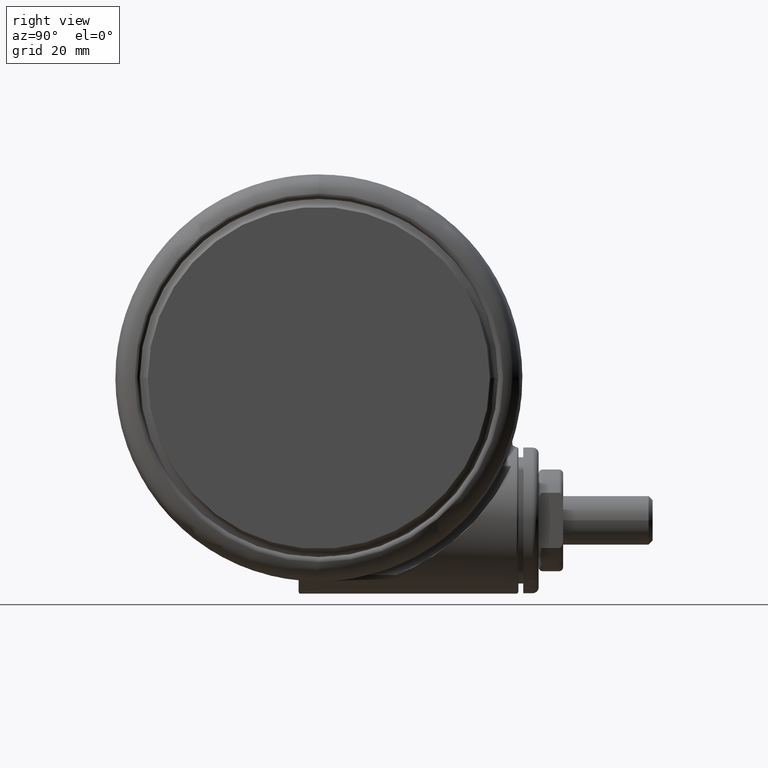
[diagram: clean part render]
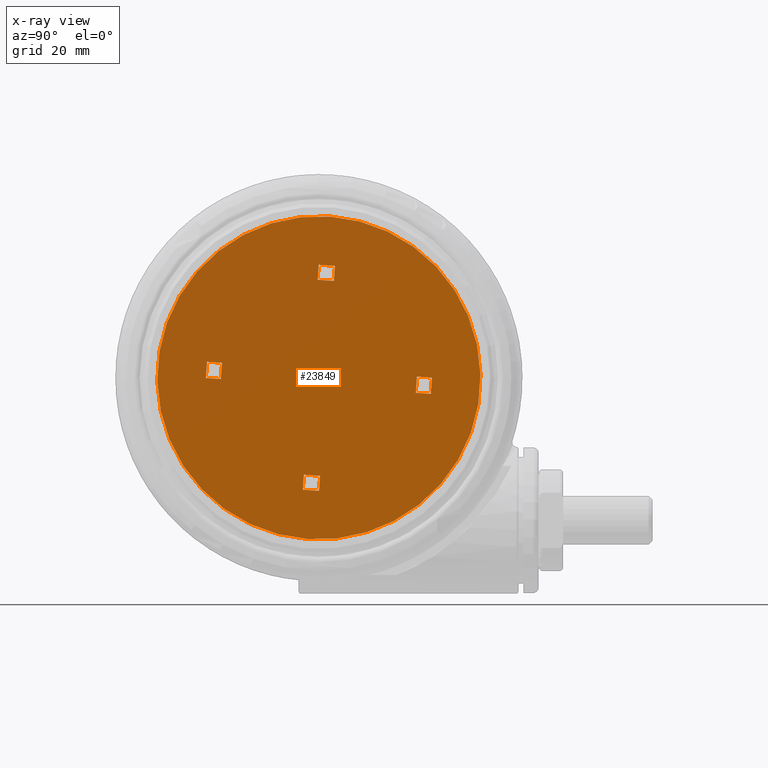
[diagram: x-ray — body ghosted, one internal face saturated and labeled with its STEP entity id]
A machine part, right view, then the same camera in x-ray: the body is ghosted and one INTERNAL B-rep face — a face not visible from any outside direction — is saturated and labeled: STEP entity #23849.
In plain terms, the highlighted planar face has unit normal (-1, 0, 0).
Its self-contained STEP definition (entity closure, byte-faithful):
#156 = ORIENTED_EDGE ( 'NONE', *, *, #77089, .T. ) ;
#795 = VERTEX_POINT ( 'NONE', #15759 ) ;
#913 = ORIENTED_EDGE ( 'NONE', *, *, #991, .T. ) ;
#991 = EDGE_CURVE ( 'NONE', #47849, #75875, #60490, .T. ) ;
#1647 = DIRECTION ( 'NONE',  ( -0.9975110611690721800, 0.07051016129148821000, 0.0000000000000000000 ) ) ;
#1745 = DIRECTION ( 'NONE',  ( 0.9975110611690716200, -0.07051016129149517700, 0.0000000000000000000 ) ) ;
#1996 = CARTESIAN_POINT ( 'NONE',  ( 3.687265398560212800, 23.79922829588536400, -63.39999999999995600 ) ) ;
#2119 = DIRECTION ( 'NONE',  ( -0.07051016129149517700, -0.9975110611690716200, 1.807003620809174600E-016 ) ) ;
#2618 = DIRECTION ( 'NONE',  ( -0.9975110611690716200, 0.07051016129149517700, -0.0000000000000000000 ) ) ;
#3063 = FACE_BOUND ( 'NONE', #27715, .T. ) ;
#3104 = PLANE ( 'NONE',  #9568 ) ;
#3300 = LINE ( 'NONE', #56321, #48868 ) ;
#3830 = VERTEX_POINT ( 'NONE', #67452 ) ;
#4232 = VECTOR ( 'NONE', #19913, 1000.000000000000100 ) ;
#4783 = DIRECTION ( 'NONE',  ( 0.9975110611690721800, -0.07051016129148821000, -0.0000000000000000000 ) ) ;
#4840 = DIRECTION ( 'NONE',  ( 0.07051016129148821000, 0.9975110611690721800, 1.807003620809174600E-016 ) ) ;
#4853 = VECTOR ( 'NONE', #32077, 1000.000000000000100 ) ;
#5481 = CARTESIAN_POINT ( 'NONE',  ( 27.63105579960949500, -1.953148317363517400, -63.39999999999995600 ) ) ;
#7957 = EDGE_CURVE ( 'NONE', #18567, #26531, #41638, .T. ) ;
#8281 = CARTESIAN_POINT ( 'NONE',  ( 0.1410197278091547300, 1.995005272748754800, -63.39999999999995600 ) ) ;
#8621 = EDGE_LOOP ( 'NONE', ( #913, #51627 ) ) ;
#9082 = DIRECTION ( 'NONE',  ( 0.0000000000000000000, 0.0000000000000000000, -1.000000000000000000 ) ) ;
#9176 = VECTOR ( 'NONE', #4783, 999.9999999999998900 ) ;
#9568 = AXIS2_PLACEMENT_3D ( 'NONE', #68409, #9082, #50645 ) ;
#11423 = CARTESIAN_POINT ( 'NONE',  ( -27.63105698915712300, 1.953114618184736500, -63.39999999999995600 ) ) ;
#11670 = VERTEX_POINT ( 'NONE', #16705 ) ;
#12051 = VECTOR ( 'NONE', #4840, 999.9999999999998900 ) ;
#12173 = CARTESIAN_POINT ( 'NONE',  ( -23.79924574024858300, 3.687249143744387900, -63.39999999999995600 ) ) ;
#12358 = VERTEX_POINT ( 'NONE', #12173 ) ;
#13404 = CARTESIAN_POINT ( 'NONE',  ( 2.799252808498129000, 39.60117227882278700, -63.39999999999995600 ) ) ;
#13612 = VECTOR ( 'NONE', #1647, 999.9999999999998900 ) ;
#15759 = CARTESIAN_POINT ( 'NONE',  ( -27.49003666657415200, 3.948136740522882400, -63.39999999999995600 ) ) ;
#16705 = CARTESIAN_POINT ( 'NONE',  ( -27.77207731174009100, -0.04190750415340857600, -63.39999999999995600 ) ) ;
#17739 = EDGE_LOOP ( 'NONE', ( #21910, #67391, #21980, #28724 ) ) ;
#18567 = VERTEX_POINT ( 'NONE', #75181 ) ;
#18641 = ORIENTED_EDGE ( 'NONE', *, *, #51813, .F. ) ;
#18848 = FACE_BOUND ( 'NONE', #31277, .T. ) ;
#19064 = DIRECTION ( 'NONE',  ( -0.9975110611690724000, 0.07051016129148471300, 1.807003620809174600E-016 ) ) ;
#19288 = VECTOR ( 'NONE', #19064, 1000.000000000000100 ) ;
#19625 = ORIENTED_EDGE ( 'NONE', *, *, #46774, .F. ) ;
#19913 = DIRECTION ( 'NONE',  ( 0.9975110611690724000, -0.07051016129148471300, 1.807003620809174600E-016 ) ) ;
#20203 = LINE ( 'NONE', #34056, #34233 ) ;
#20529 = LINE ( 'NONE', #37391, #22396 ) ;
#20609 = LINE ( 'NONE', #43818, #4853 ) ;
#20662 = DIRECTION ( 'NONE',  ( -0.07051016129148471300, -0.9975110611690724000, -0.0000000000000000000 ) ) ;
#20692 = FACE_OUTER_BOUND ( 'NONE', #8621, .T. ) ;
#21394 = LINE ( 'NONE', #25743, #35411 ) ;
#21910 = ORIENTED_EDGE ( 'NONE', *, *, #75179, .T. ) ;
#21980 = ORIENTED_EDGE ( 'NONE', *, *, #50796, .T. ) ;
#22396 = VECTOR ( 'NONE', #1745, 1000.000000000000100 ) ;
#23389 = ORIENTED_EDGE ( 'NONE', *, *, #67995, .T. ) ;
#23492 = DIRECTION ( 'NONE',  ( -0.0000000000000000000, -0.0000000000000000000, 1.000000000000000000 ) ) ;
#23693 = ORIENTED_EDGE ( 'NONE', *, *, #30714, .T. ) ;
#23849 = ADVANCED_FACE ( 'NONE', ( #18848, #68235, #50465, #3063, #20692 ), #3104, .F. ) ;
#24009 = CARTESIAN_POINT ( 'NONE',  ( -1.995022717111959200, 0.1410034729935856800, -63.39999999999995600 ) ) ;
#24443 = VERTEX_POINT ( 'NONE', #76673 ) ;
#24960 = LINE ( 'NONE', #76097, #9176 ) ;
#25743 = CARTESIAN_POINT ( 'NONE',  ( -0.3027788461160768100, 24.08126894105130200, -63.39999999999995600 ) ) ;
#25981 = LINE ( 'NONE', #40488, #12051 ) ;
#26004 = CARTESIAN_POINT ( 'NONE',  ( -1.995022717111958300, 0.1410034729936002800, -63.39999999999995600 ) ) ;
#26432 = EDGE_CURVE ( 'NONE', #11670, #60570, #76269, .T. ) ;
#26531 = VERTEX_POINT ( 'NONE', #56555 ) ;
#27226 = CARTESIAN_POINT ( 'NONE',  ( 1.995021527564329500, -0.1410371721723804300, -63.39999999999995600 ) ) ;
#27715 = EDGE_LOOP ( 'NONE', ( #57493, #23389, #73584, #19625 ) ) ;
#28247 = VERTEX_POINT ( 'NONE', #36958 ) ;
#28724 = ORIENTED_EDGE ( 'NONE', *, *, #26432, .F. ) ;
#30045 = DIRECTION ( 'NONE',  ( 0.07051016129148821000, 0.9975110611690721800, 1.807003620809174600E-016 ) ) ;
#30714 = EDGE_CURVE ( 'NONE', #42295, #63861, #21394, .T. ) ;
#30885 = LINE ( 'NONE', #24009, #32733 ) ;
#31277 = EDGE_LOOP ( 'NONE', ( #42054, #156, #23693, #18641 ) ) ;
#31290 = LINE ( 'NONE', #43018, #13612 ) ;
#31457 = EDGE_LOOP ( 'NONE', ( #49619, #73846, #32109, #65407 ) ) ;
#32023 = CARTESIAN_POINT ( 'NONE',  ( -24.08128638541452200, -0.3027951009319021500, -63.39999999999995600 ) ) ;
#32041 = EDGE_CURVE ( 'NONE', #24443, #57250, #25981, .T. ) ;
#32077 = DIRECTION ( 'NONE',  ( -0.9975110611690724000, 0.07051016129148471300, 1.807003620809174600E-016 ) ) ;
#32109 = ORIENTED_EDGE ( 'NONE', *, *, #40730, .T. ) ;
#32631 = LINE ( 'NONE', #27226, #62421 ) ;
#32733 = VECTOR ( 'NONE', #30045, 999.9999999999998900 ) ;
#32744 = VERTEX_POINT ( 'NONE', #53861 ) ;
#32938 = DIRECTION ( 'NONE',  ( -0.07051016129149517700, -0.9975110611690716200, 1.807003620809174600E-016 ) ) ;
#33139 = EDGE_CURVE ( 'NONE', #3830, #52114, #20203, .T. ) ;
#33906 = CIRCLE ( 'NONE', #72180, 39.70000000000001000 ) ;
#33970 = EDGE_CURVE ( 'NONE', #24443, #44628, #31290, .T. ) ;
#34056 = CARTESIAN_POINT ( 'NONE',  ( 24.08128519586689700, 0.3027614017531213300, -63.39999999999995600 ) ) ;
#34233 = VECTOR ( 'NONE', #46011, 1000.000000000000100 ) ;
#34648 = EDGE_CURVE ( 'NONE', #795, #12358, #37732, .T. ) ;
#34689 = CARTESIAN_POINT ( 'NONE',  ( -5.947738144010394900E-007, -1.684958939041081300E-005, -63.39999999999995600 ) ) ;
#35174 = LINE ( 'NONE', #54705, #19288 ) ;
#35411 = VECTOR ( 'NONE', #2618, 1000.000000000000100 ) ;
#36958 = CARTESIAN_POINT ( 'NONE',  ( 3.948152995338747300, 27.49001922221092900, -63.39999999999995600 ) ) ;
#37391 = CARTESIAN_POINT ( 'NONE',  ( 42.35232885034772500, 24.77537801248838500, -63.39999999999995600 ) ) ;
#37732 = LINE ( 'NONE', #8281, #4232 ) ;
#37866 = DIRECTION ( 'NONE',  ( 0.9975110611690724000, -0.07051016129148471300, 1.807003620809174600E-016 ) ) ;
#38034 = VECTOR ( 'NONE', #41098, 1000.000000000000100 ) ;
#38817 = CARTESIAN_POINT ( 'NONE',  ( 24.08128519586689700, 0.3027614017531213300, -63.39999999999995600 ) ) ;
#39940 = LINE ( 'NONE', #11423, #38034 ) ;
#40488 = CARTESIAN_POINT ( 'NONE',  ( 1.995021527564330400, -0.1410371721723671600, -63.39999999999995600 ) ) ;
#40667 = DIRECTION ( 'NONE',  ( 0.07051016129148471300, 0.9975110611690722900, 0.0000000000000000000 ) ) ;
#40730 = EDGE_CURVE ( 'NONE', #32744, #57250, #24960, .T. ) ;
#41098 = DIRECTION ( 'NONE',  ( 0.07051016129148471300, 0.9975110611690724000, 0.0000000000000000000 ) ) ;
#41319 = VECTOR ( 'NONE', #2119, 1000.000000000000100 ) ;
#41638 = LINE ( 'NONE', #5481, #55522 ) ;
#41837 = CARTESIAN_POINT ( 'NONE',  ( -0.04189124933754286000, 27.77205986737686800, -63.39999999999995600 ) ) ;
#42054 = ORIENTED_EDGE ( 'NONE', *, *, #43891, .T. ) ;
#42295 = VERTEX_POINT ( 'NONE', #1996 ) ;
#42707 = VECTOR ( 'NONE', #37866, 1000.000000000000100 ) ;
#43018 = CARTESIAN_POINT ( 'NONE',  ( 38.44606591479949700, -30.48673477627783200, -63.39999999999995600 ) ) ;
#43035 = CARTESIAN_POINT ( 'NONE',  ( -2.799253998045753400, -39.60120597800156600, -63.39999999999995600 ) ) ;
#43818 = CARTESIAN_POINT ( 'NONE',  ( -0.1410209173567835200, -1.995038971927535700, -63.39999999999995600 ) ) ;
#43891 = EDGE_CURVE ( 'NONE', #62874, #28247, #20529, .T. ) ;
#44628 = VERTEX_POINT ( 'NONE', #48316 ) ;
#45025 = LINE ( 'NONE', #26004, #41319 ) ;
#46011 = DIRECTION ( 'NONE',  ( 0.07051016129148471300, 0.9975110611690724000, -0.0000000000000000000 ) ) ;
#46774 = EDGE_CURVE ( 'NONE', #18567, #52114, #35174, .T. ) ;
#47849 = VERTEX_POINT ( 'NONE', #13404 ) ;
#48316 = CARTESIAN_POINT ( 'NONE',  ( -3.948154184886180800, -27.49005292138972200, -63.39999999999995600 ) ) ;
#48868 = VECTOR ( 'NONE', #20662, 1000.000000000000100 ) ;
#49619 = ORIENTED_EDGE ( 'NONE', *, *, #33970, .T. ) ;
#50465 = FACE_BOUND ( 'NONE', #31457, .T. ) ;
#50645 = DIRECTION ( 'NONE',  ( 0.07051016129148471300, 0.9975110611690724000, 0.0000000000000000000 ) ) ;
#50796 = EDGE_CURVE ( 'NONE', #12358, #60570, #3300, .T. ) ;
#51488 = EDGE_CURVE ( 'NONE', #75875, #47849, #33906, .T. ) ;
#51627 = ORIENTED_EDGE ( 'NONE', *, *, #51488, .T. ) ;
#51748 = CARTESIAN_POINT ( 'NONE',  ( -0.3027788461160768100, 24.08126894105130200, -63.39999999999995600 ) ) ;
#51813 = EDGE_CURVE ( 'NONE', #62874, #63861, #45025, .T. ) ;
#52114 = VERTEX_POINT ( 'NONE', #38817 ) ;
#53861 = CARTESIAN_POINT ( 'NONE',  ( -3.687266588107677800, -23.79926199506415300, -63.39999999999995600 ) ) ;
#54705 = CARTESIAN_POINT ( 'NONE',  ( 0.1410197278091553700, 1.995005272748754800, -63.39999999999995600 ) ) ;
#55522 = VECTOR ( 'NONE', #59032, 1000.000000000000100 ) ;
#56321 = CARTESIAN_POINT ( 'NONE',  ( -24.08128638541452200, -0.3027951009319021500, -63.39999999999995600 ) ) ;
#56555 = CARTESIAN_POINT ( 'NONE',  ( 27.49003547702652400, -3.948170439701663300, -63.39999999999995600 ) ) ;
#57243 = EDGE_CURVE ( 'NONE', #44628, #32744, #30885, .T. ) ;
#57250 = VERTEX_POINT ( 'NONE', #59664 ) ;
#57493 = ORIENTED_EDGE ( 'NONE', *, *, #7957, .T. ) ;
#57957 = AXIS2_PLACEMENT_3D ( 'NONE', #59167, #23492, #65197 ) ;
#59032 = DIRECTION ( 'NONE',  ( -0.07051016129148471300, -0.9975110611690724000, 0.0000000000000000000 ) ) ;
#59167 = CARTESIAN_POINT ( 'NONE',  ( -5.947738144010394900E-007, -1.684958939041081300E-005, -63.39999999999995600 ) ) ;
#59664 = CARTESIAN_POINT ( 'NONE',  ( 0.3027776565686123900, -24.08130264023009200, -63.39999999999995600 ) ) ;
#60490 = CIRCLE ( 'NONE', #57957, 39.70000000000001000 ) ;
#60570 = VERTEX_POINT ( 'NONE', #32023 ) ;
#61510 = CARTESIAN_POINT ( 'NONE',  ( -0.1410209173567841800, -1.995038971927535700, -63.39999999999995600 ) ) ;
#62421 = VECTOR ( 'NONE', #32938, 1000.000000000000100 ) ;
#62874 = VERTEX_POINT ( 'NONE', #41837 ) ;
#63861 = VERTEX_POINT ( 'NONE', #51748 ) ;
#65197 = DIRECTION ( 'NONE',  ( 0.07051016129148471300, 0.9975110611690722900, 0.0000000000000000000 ) ) ;
#65407 = ORIENTED_EDGE ( 'NONE', *, *, #32041, .F. ) ;
#67391 = ORIENTED_EDGE ( 'NONE', *, *, #34648, .T. ) ;
#67452 = CARTESIAN_POINT ( 'NONE',  ( 23.79924455070095800, -3.687282842923168800, -63.39999999999995600 ) ) ;
#67995 = EDGE_CURVE ( 'NONE', #26531, #3830, #20609, .T. ) ;
#68235 = FACE_BOUND ( 'NONE', #17739, .T. ) ;
#68409 = CARTESIAN_POINT ( 'NONE',  ( 40.39919738257362500, -2.855678381894521900, -63.39999999999995600 ) ) ;
#72180 = AXIS2_PLACEMENT_3D ( 'NONE', #34689, #76346, #40667 ) ;
#73584 = ORIENTED_EDGE ( 'NONE', *, *, #33139, .T. ) ;
#73846 = ORIENTED_EDGE ( 'NONE', *, *, #57243, .T. ) ;
#75179 = EDGE_CURVE ( 'NONE', #11670, #795, #39940, .T. ) ;
#75181 = CARTESIAN_POINT ( 'NONE',  ( 27.77207612219246300, 0.04187380497462775400, -63.39999999999995600 ) ) ;
#75875 = VERTEX_POINT ( 'NONE', #43035 ) ;
#76097 = CARTESIAN_POINT ( 'NONE',  ( 0.3027776565686123900, -24.08130264023009200, -63.39999999999995600 ) ) ;
#76269 = LINE ( 'NONE', #61510, #42707 ) ;
#76346 = DIRECTION ( 'NONE',  ( -0.0000000000000000000, -0.0000000000000000000, 1.000000000000000000 ) ) ;
#76673 = CARTESIAN_POINT ( 'NONE',  ( 0.04189005979010878400, -27.77209356655566100, -63.39999999999995600 ) ) ;
#77089 = EDGE_CURVE ( 'NONE', #28247, #42295, #32631, .T. ) ;